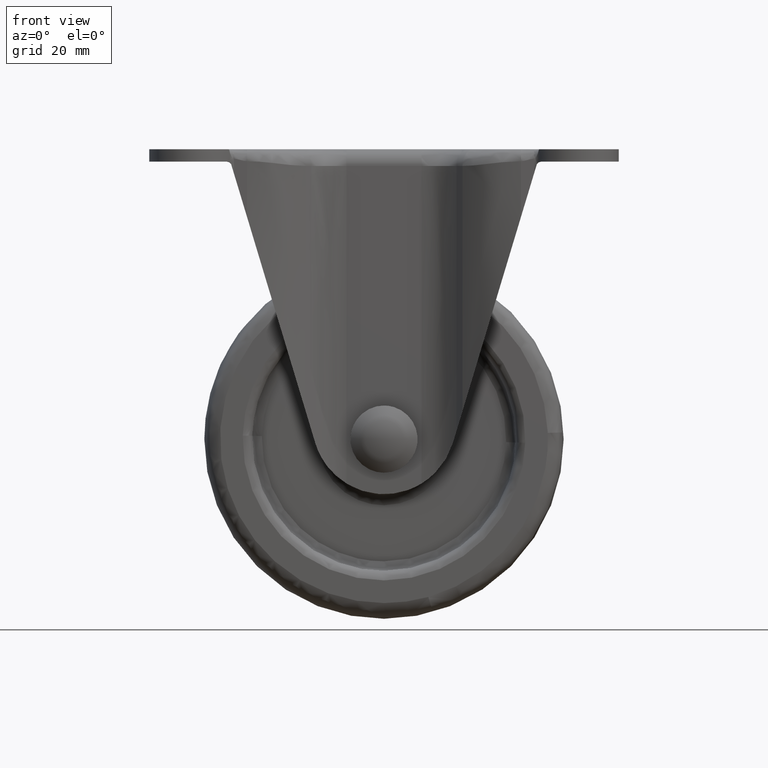
[diagram: clean part render]
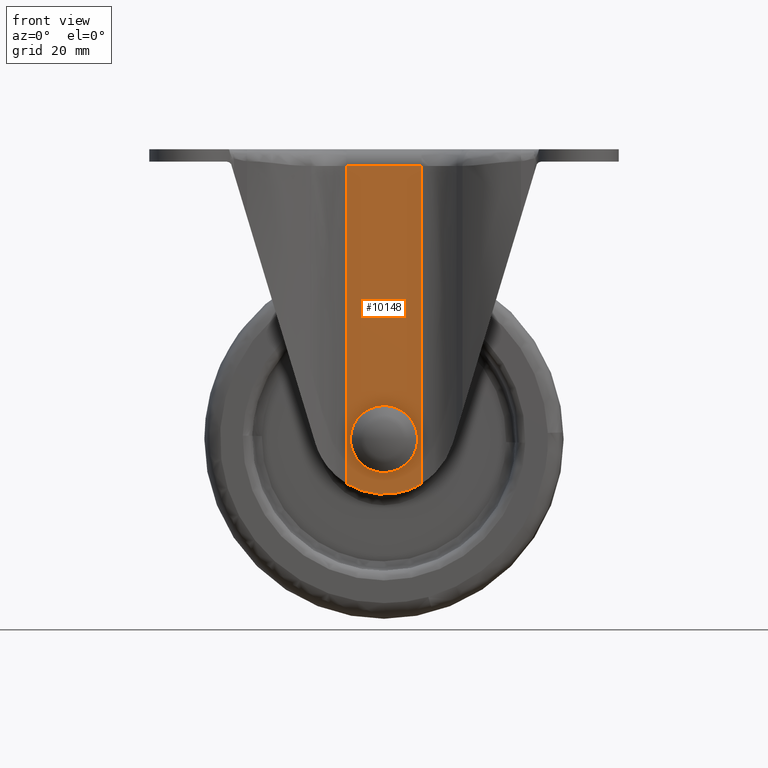
[diagram: same view with one face highlighted and labeled with its STEP entity id]
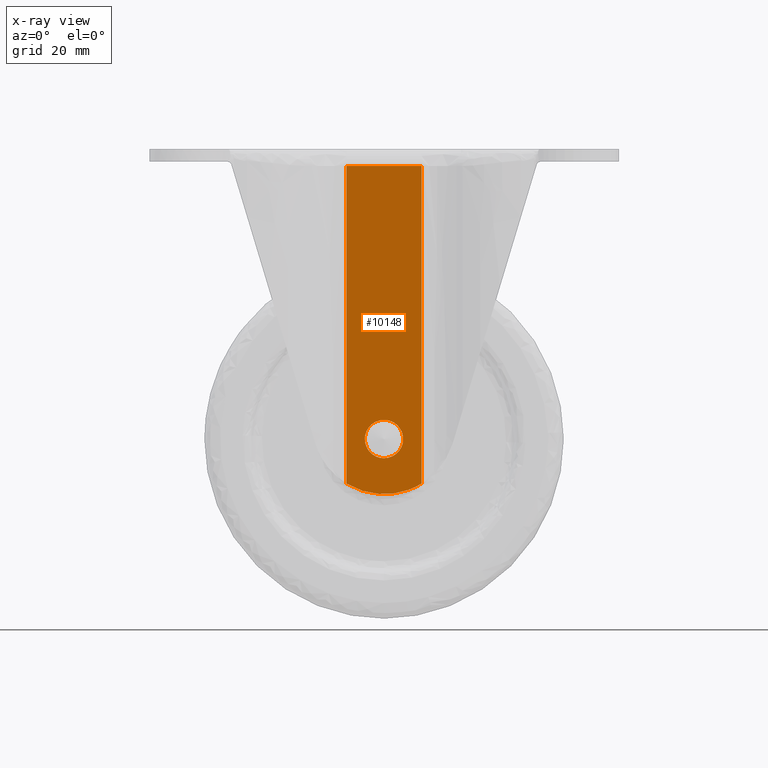
[diagram: x-ray of the same camera — body ghosted, the highlighted face saturated]
A machine part, front view. The second image highlights one B-rep face of the part: STEP entity #10148.
The next image is the same camera in x-ray: the body ghosted, the highlighted face saturated — about 0% of this face is hidden behind the body in this view.
In plain terms, the highlighted face is a freeform B-spline surface patch.
Its self-contained STEP definition (entity closure, byte-faithful):
#4369=CARTESIAN_POINT('',(-3.999847692253271,-18.399999999999999,-60.465093857615273));
#4370=VERTEX_POINT('',#4369);
#4376=CARTESIAN_POINT('',(0.0,-18.399999999999999,-64.500000000000000));
#4377=VERTEX_POINT('',#4376);
#4378=CARTESIAN_POINT('',(-3.999847692253271,-18.399999999999999,-60.465093857615280));
#4379=CARTESIAN_POINT('',(-4.0,-18.399999999999999,-60.482546596325946));
#4380=CARTESIAN_POINT('',(-4.0,-18.399999999999999,-60.500000000000000));
#4381=CARTESIAN_POINT('',(-4.000000000000000,-18.399999999999991,-64.500000000000000));
#4382=CARTESIAN_POINT('',(0.0,-18.399999999999999,-64.500000000000000));
#4390=(BOUNDED_CURVE()B_SPLINE_CURVE(2,(#4378,#4379,#4380,#4381,#4382),.UNSPECIFIED.,.F.,.U.)B_SPLINE_CURVE_WITH_KNOTS((3,2,3),(0.248460105630556,0.250000000000000,0.500000000000000),.UNSPECIFIED.)CURVE()GEOMETRIC_REPRESENTATION_ITEM()RATIONAL_B_SPLINE_CURVE((0.996414028020662,0.998195901526003,1.0,0.707106781186548,1.0))REPRESENTATION_ITEM(''));
#4391=EDGE_CURVE('',#4370,#4377,#4390,.T.);
#4393=CARTESIAN_POINT('',(3.969064855267805,-18.399999999999999,-60.996512008593903));
#4394=VERTEX_POINT('',#4393);
#4395=CARTESIAN_POINT('',(0.0,-18.399999999999999,-64.500000000000000));
#4396=CARTESIAN_POINT('',(3.530794400108600,-18.400000000000002,-64.500000000000000));
#4397=CARTESIAN_POINT('',(3.969064855267805,-18.400000000000006,-60.996512008593903));
#4405=(BOUNDED_CURVE()B_SPLINE_CURVE(2,(#4395,#4396,#4397),.UNSPECIFIED.,.F.,.U.)B_SPLINE_CURVE_WITH_KNOTS((3,3),(0.500000000000000,0.728526071005966),.UNSPECIFIED.)CURVE()GEOMETRIC_REPRESENTATION_ITEM()RATIONAL_B_SPLINE_CURVE((1.0,0.732265053921085,0.954005430229438))REPRESENTATION_ITEM(''));
#4406=EDGE_CURVE('',#4377,#4394,#4405,.T.);
#4456=CARTESIAN_POINT('',(0.0,-18.399999999999999,-56.499999999999993));
#4457=VERTEX_POINT('',#4456);
#4458=CARTESIAN_POINT('',(3.969064855267806,-18.400000000000002,-60.996512008593903));
#4459=CARTESIAN_POINT('',(4.000000000000001,-18.400000000000002,-60.749219710411779));
#4460=CARTESIAN_POINT('',(4.0,-18.399999999999999,-60.500000000000000));
#4461=CARTESIAN_POINT('',(4.000000000000000,-18.399999999999991,-56.499999999999993));
#4462=CARTESIAN_POINT('',(0.0,-18.399999999999999,-56.499999999999993));
#4470=(BOUNDED_CURVE()B_SPLINE_CURVE(2,(#4458,#4459,#4460,#4461,#4462),.UNSPECIFIED.,.F.,.U.)B_SPLINE_CURVE_WITH_KNOTS((3,2,3),(0.728526071005965,0.750000000000000,1.0),.UNSPECIFIED.)CURVE()GEOMETRIC_REPRESENTATION_ITEM()RATIONAL_B_SPLINE_CURVE((0.954005430229436,0.974841727265462,1.0,0.707106781186548,1.0))REPRESENTATION_ITEM(''));
#4471=EDGE_CURVE('',#4394,#4457,#4470,.T.);
#4473=CARTESIAN_POINT('',(0.0,-18.399999999999999,-56.499999999999993));
#4474=CARTESIAN_POINT('',(-3.965244841604198,-18.399999999999999,-56.499999999999993));
#4475=CARTESIAN_POINT('',(-3.999847692253270,-18.399999999999995,-60.465093857615273));
#4483=(BOUNDED_CURVE()B_SPLINE_CURVE(2,(#4473,#4474,#4475),.UNSPECIFIED.,.F.,.U.)B_SPLINE_CURVE_WITH_KNOTS((3,3),(0.0,0.248460105630556),.UNSPECIFIED.)CURVE()GEOMETRIC_REPRESENTATION_ITEM()RATIONAL_B_SPLINE_CURVE((1.0,0.708910879660545,0.996414028020662))REPRESENTATION_ITEM(''));
#4484=EDGE_CURVE('',#4457,#4370,#4483,.T.);
#4999=CARTESIAN_POINT('',(7.828796000000001,-18.399999999999999,-3.499999999999950));
#5000=VERTEX_POINT('',#4999);
#5060=CARTESIAN_POINT('',(-7.828835999999799,-18.399999999999999,-3.499999999999950));
#5061=VERTEX_POINT('',#5060);
#5075=CARTESIAN_POINT('',(7.828796000000001,-18.399999999999999,-3.499999999999950));
#5076=CARTESIAN_POINT('',(-7.828835999999799,-18.399999999999999,-3.499999999999950));
#5077=QUASI_UNIFORM_CURVE('',1,(#5075,#5076),.UNSPECIFIED.,.F.,.U.);
#5078=EDGE_CURVE('',#5000,#5061,#5077,.T.);
#7830=CARTESIAN_POINT('',(-7.828835999999799,-18.399999999999999,-69.794892671915406));
#7831=VERTEX_POINT('',#7830);
#7942=CARTESIAN_POINT('',(7.828796000000001,-18.399999999999999,-69.794917146704208));
#7943=VERTEX_POINT('',#7942);
#7971=CARTESIAN_POINT('',(-7.828835999999794,-18.399999999999999,-69.794892671915392));
#7972=CARTESIAN_POINT('',(-0.000027487690947,-18.399999999999999,-74.585120337740193));
#7973=CARTESIAN_POINT('',(7.828795999999985,-18.399999999999999,-69.794917146704194));
#7981=(BOUNDED_CURVE()B_SPLINE_CURVE(2,(#7971,#7972,#7973),.UNSPECIFIED.,.F.,.U.)CURVE()GEOMETRIC_REPRESENTATION_ITEM()QUASI_UNIFORM_CURVE()RATIONAL_B_SPLINE_CURVE((1.0,0.852993786711762,1.0))REPRESENTATION_ITEM(''));
#7982=EDGE_CURVE('',#7831,#7943,#7981,.T.);
#9823=CARTESIAN_POINT('',(7.828796000000001,-18.399999999999999,-69.794917146704208));
#9824=CARTESIAN_POINT('',(7.828796000000001,-18.399999999999999,-3.499999999999950));
#9825=QUASI_UNIFORM_CURVE('',1,(#9823,#9824),.UNSPECIFIED.,.F.,.U.);
#9826=EDGE_CURVE('',#7943,#5000,#9825,.T.);
#9847=CARTESIAN_POINT('',(-7.828835999999799,-18.399999999999999,-69.794892671915406));
#9848=CARTESIAN_POINT('',(-7.828835999999799,-18.399999999999999,-3.499999999999950));
#9849=QUASI_UNIFORM_CURVE('',1,(#9847,#9848),.UNSPECIFIED.,.F.,.U.);
#9850=EDGE_CURVE('',#7831,#5061,#9849,.T.);
#10131=CARTESIAN_POINT('',(-8.610934688052263,-18.399999999999999,-75.421574810478802));
#10132=CARTESIAN_POINT('',(-8.610934688052263,-18.399999999999999,-0.078423298153153));
#10133=CARTESIAN_POINT('',(8.610895108022877,-18.399999999999999,-75.421574810478802));
#10134=CARTESIAN_POINT('',(8.610895108022877,-18.399999999999999,-0.078423298153153));
#10135=B_SPLINE_SURFACE_WITH_KNOTS('',1,1,((#10131,#10133),(#10132,#10134)),.UNSPECIFIED.,.F.,.F.,.U.,(2,2),(2,2),(0.0,75.343151512325647),(0.0,17.221829796075141),.UNSPECIFIED.);
#10136=ORIENTED_EDGE('',*,*,#9826,.T.);
#10137=ORIENTED_EDGE('',*,*,#5078,.T.);
#10138=ORIENTED_EDGE('',*,*,#9850,.F.);
#10139=ORIENTED_EDGE('',*,*,#7982,.T.);
#10140=EDGE_LOOP('',(#10136,#10137,#10138,#10139));
#10141=FACE_OUTER_BOUND('',#10140,.T.);
#10142=ORIENTED_EDGE('',*,*,#4484,.F.);
#10143=ORIENTED_EDGE('',*,*,#4471,.F.);
#10144=ORIENTED_EDGE('',*,*,#4406,.F.);
#10145=ORIENTED_EDGE('',*,*,#4391,.F.);
#10146=EDGE_LOOP('',(#10142,#10143,#10144,#10145));
#10147=FACE_BOUND('',#10146,.T.);
#10148=ADVANCED_FACE('',(#10141,#10147),#10135,.F.);